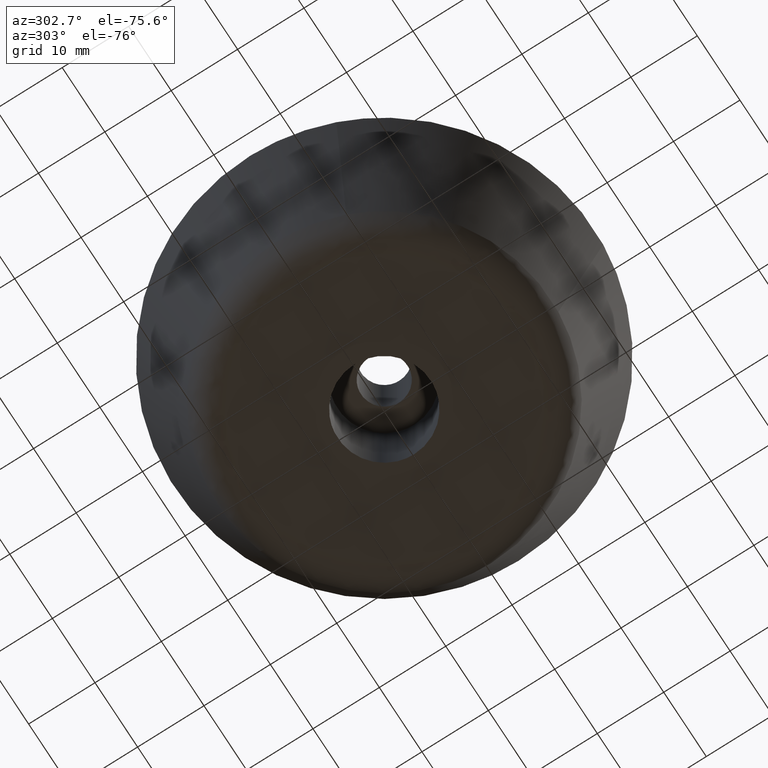
[diagram: clean part render]
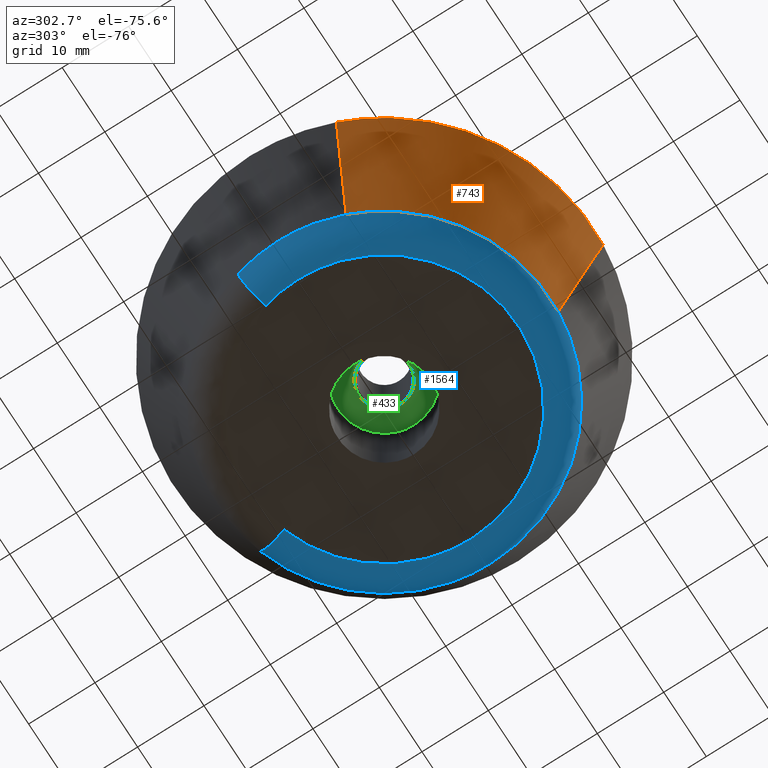
[diagram: same view with three faces highlighted in distinct colors, each labeled with its STEP entity id]
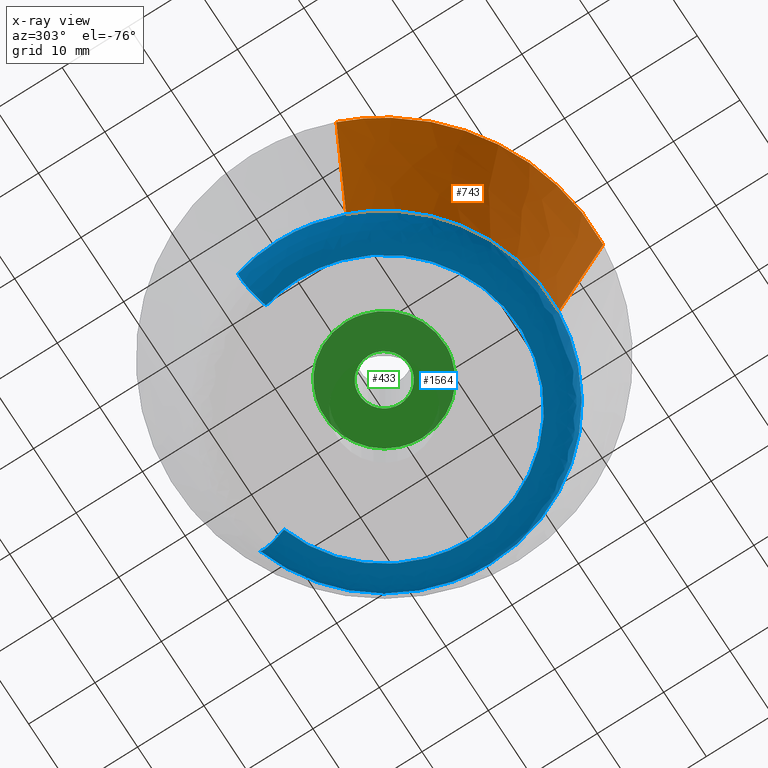
[diagram: x-ray of the same camera — body ghosted, the three highlighted faces saturated]
A machine part, auxiliary view with three faces highlighted in distinct colors.
The next image is the same camera in x-ray (body ghosted, the three faces saturated) — at least one of them is partly hidden behind the body in this view.
Their STEP definitions:

[orange] entity #743 — the highlighted face is a freeform B-spline surface patch.
#679=CARTESIAN_POINT('',(-23.136069071193617,-9.153823592287615,3.054551920910266));
#680=CARTESIAN_POINT('',(-16.373259671946041,-26.246661770656686,3.054551920910266));
#681=CARTESIAN_POINT('',(1.952150248378111,-24.804420731666379,3.054551920910266));
#682=CARTESIAN_POINT('',(-29.444595726723545,-11.649802488022551,26.573636201977241));
#683=CARTESIAN_POINT('',(-20.837766791134719,-33.403355714185082,26.573636201977234));
#684=CARTESIAN_POINT('',(2.484444297103360,-31.567857894616701,26.573636201977241));
#692=(BOUNDED_SURFACE()B_SPLINE_SURFACE(2,1,((#679,#682),(#680,#683),(#681,#684)),.UNSPECIFIED.,.F.,.F.,.U.)B_SPLINE_SURFACE_WITH_KNOTS((3,3),(2,2),(0.0,41.685970175264274),(0.0,24.478046176756379),.UNSPECIFIED.)GEOMETRIC_REPRESENTATION_ITEM()RATIONAL_B_SPLINE_SURFACE(((0.906274169979695,0.906274169979695),(0.765685424949238,0.765685424949238),(1.0,1.0)))REPRESENTATION_ITEM('')SURFACE());
#693=CARTESIAN_POINT('',(1.964796795045842,-24.965356706877639,3.614183215701587));
#694=VERTEX_POINT('',#693);
#695=CARTESIAN_POINT('',(-23.286182837838449,-9.213213582374392,3.614193855778152));
#696=VERTEX_POINT('',#695);
#697=CARTESIAN_POINT('',(1.964796795045843,-24.965356706877639,3.614183215701587));
#698=CARTESIAN_POINT('',(0.983914783355928,-25.042553132541119,3.614183498625328));
#699=CARTESIAN_POINT('',(-0.000000248841546,-25.042553234370239,3.614183797076507));
#700=CARTESIAN_POINT('',(-17.023279753227662,-25.042554996174200,3.614188960751894));
#701=CARTESIAN_POINT('',(-23.286182837838446,-9.213213582374392,3.614193855778151));
#709=(BOUNDED_CURVE()B_SPLINE_CURVE(2,(#697,#698,#699,#700,#701),.UNSPECIFIED.,.F.,.U.)B_SPLINE_CURVE_WITH_KNOTS((3,2,3),(0.736331432949555,0.750000000000000,0.937532566109869),.UNSPECIFIED.)CURVE()GEOMETRIC_REPRESENTATION_ITEM()RATIONAL_B_SPLINE_CURVE((0.969723632307023,0.983986277600111,1.0,0.780291932318936,0.890203206456037))REPRESENTATION_ITEM(''));
#710=EDGE_CURVE('',#694,#696,#709,.T.);
#711=ORIENTED_EDGE('',*,*,#710,.F.);
#712=CARTESIAN_POINT('',(2.471443264647377,-31.402893684112271,25.999986988792958));
#713=VERTEX_POINT('',#712);
#714=CARTESIAN_POINT('',(1.964796795045842,-24.965356706877639,3.614183215701587));
#715=CARTESIAN_POINT('',(2.471443264647377,-31.402893684112271,25.999986988792958));
#716=QUASI_UNIFORM_CURVE('',1,(#714,#715),.UNSPECIFIED.,.F.,.U.);
#717=EDGE_CURVE('',#694,#713,#716,.T.);
#718=ORIENTED_EDGE('',*,*,#717,.T.);
#719=CARTESIAN_POINT('',(-29.290729468696490,-11.588913489933820,25.999986171061011));
#720=VERTEX_POINT('',#719);
#721=CARTESIAN_POINT('',(2.471443264647377,-31.402893684112271,25.999986988792958));
#722=CARTESIAN_POINT('',(1.237629162913667,-31.499996318800296,25.999986967049104));
#723=CARTESIAN_POINT('',(-0.000000075704237,-31.499996382587280,25.999986944111900));
#724=CARTESIAN_POINT('',(-21.412885786395133,-31.499997486199881,25.999986547263063));
#725=CARTESIAN_POINT('',(-29.290729468696490,-11.588913489933823,25.999986171061011));
#733=(BOUNDED_CURVE()B_SPLINE_CURVE(2,(#721,#722,#723,#724,#725),.UNSPECIFIED.,.F.,.U.)B_SPLINE_CURVE_WITH_KNOTS((3,2,3),(0.736331398654010,0.750000000000000,0.937532603646275),.UNSPECIFIED.)CURVE()GEOMETRIC_REPRESENTATION_ITEM()RATIONAL_B_SPLINE_CURVE((0.969723560734762,0.983986237420380,1.0,0.780291888342301,0.890203250455600))REPRESENTATION_ITEM(''));
#734=EDGE_CURVE('',#713,#720,#733,.T.);
#735=ORIENTED_EDGE('',*,*,#734,.T.);
#736=CARTESIAN_POINT('',(-23.286182837838449,-9.213213582374392,3.614193855778152));
#737=CARTESIAN_POINT('',(-29.290729468696490,-11.588913489933820,25.999986171061011));
#738=QUASI_UNIFORM_CURVE('',1,(#736,#737),.UNSPECIFIED.,.F.,.U.);
#739=EDGE_CURVE('',#696,#720,#738,.T.);
#740=ORIENTED_EDGE('',*,*,#739,.F.);
#741=EDGE_LOOP('',(#711,#718,#735,#740));
#742=FACE_OUTER_BOUND('',#741,.T.);
#743=ADVANCED_FACE('',(#742),#692,.T.);

[blue] entity #1564 — the highlighted face is a freeform B-spline surface patch.
#693=CARTESIAN_POINT('',(1.964796795045842,-24.965356706877639,3.614183215701587));
#694=VERTEX_POINT('',#693);
#695=CARTESIAN_POINT('',(-23.286182837838449,-9.213213582374392,3.614193855778152));
#696=VERTEX_POINT('',#695);
#697=CARTESIAN_POINT('',(1.964796795045843,-24.965356706877639,3.614183215701587));
#698=CARTESIAN_POINT('',(0.983914783355928,-25.042553132541119,3.614183498625328));
#699=CARTESIAN_POINT('',(-0.000000248841546,-25.042553234370239,3.614183797076507));
#700=CARTESIAN_POINT('',(-17.023279753227662,-25.042554996174200,3.614188960751894));
#701=CARTESIAN_POINT('',(-23.286182837838446,-9.213213582374392,3.614193855778151));
#709=(BOUNDED_CURVE()B_SPLINE_CURVE(2,(#697,#698,#699,#700,#701),.UNSPECIFIED.,.F.,.U.)B_SPLINE_CURVE_WITH_KNOTS((3,2,3),(0.736331432949555,0.750000000000000,0.937532566109869),.UNSPECIFIED.)CURVE()GEOMETRIC_REPRESENTATION_ITEM()RATIONAL_B_SPLINE_CURVE((0.969723632307023,0.983986277600111,1.0,0.780291932318936,0.890203206456037))REPRESENTATION_ITEM(''));
#710=EDGE_CURVE('',#694,#696,#709,.T.);
#770=CARTESIAN_POINT('',(-25.042556999999949,0.0,3.614197000000105));
#771=VERTEX_POINT('',#770);
#772=CARTESIAN_POINT('',(-23.286182837838446,-9.213213582374392,3.614193855778151));
#773=CARTESIAN_POINT('',(-25.042556578312364,-4.774021075879326,3.614195427889129));
#774=CARTESIAN_POINT('',(-25.042556999999949,0.0,3.614197000000105));
#782=(BOUNDED_CURVE()B_SPLINE_CURVE(2,(#772,#773,#774),.UNSPECIFIED.,.F.,.U.)B_SPLINE_CURVE_WITH_KNOTS((3,3),(0.937532566109869,1.0),.UNSPECIFIED.)CURVE()GEOMETRIC_REPRESENTATION_ITEM()RATIONAL_B_SPLINE_CURVE((0.890203206456037,0.926814848867612,1.0))REPRESENTATION_ITEM(''));
#783=EDGE_CURVE('',#696,#771,#782,.T.);
#832=CARTESIAN_POINT('',(25.042556999999949,0.0,3.614197000000105));
#833=VERTEX_POINT('',#832);
#834=CARTESIAN_POINT('',(25.042556999999949,0.0,3.614197000000105));
#835=CARTESIAN_POINT('',(25.042556844015103,-23.149117518880452,3.614190107850846));
#836=CARTESIAN_POINT('',(1.964796795045843,-24.965356706877639,3.614183215701587));
#844=(BOUNDED_CURVE()B_SPLINE_CURVE(2,(#834,#835,#836),.UNSPECIFIED.,.F.,.U.)B_SPLINE_CURVE_WITH_KNOTS((3,3),(0.500000000000000,0.736331432949555),.UNSPECIFIED.)CURVE()GEOMETRIC_REPRESENTATION_ITEM()RATIONAL_B_SPLINE_CURVE((1.0,0.723120503586436,0.969723632307023))REPRESENTATION_ITEM(''));
#845=EDGE_CURVE('',#833,#694,#844,.T.);
#847=CARTESIAN_POINT('',(7.904105843229777,23.762465625612439,3.614196996014758));
#848=VERTEX_POINT('',#847);
#849=CARTESIAN_POINT('',(7.904105843229777,23.762465625612432,3.614196996014758));
#850=CARTESIAN_POINT('',(25.042556999999960,18.061704837062404,3.614197000000105));
#851=CARTESIAN_POINT('',(25.042556999999949,0.0,3.614197000000105));
#859=(BOUNDED_CURVE()B_SPLINE_CURVE(2,(#849,#850,#851),.UNSPECIFIED.,.F.,.U.)B_SPLINE_CURVE_WITH_KNOTS((3,3),(0.303659303332147,0.500000000000000),.UNSPECIFIED.)CURVE()GEOMETRIC_REPRESENTATION_ITEM()RATIONAL_B_SPLINE_CURVE((0.901255104929078,0.769972565475507,1.0))REPRESENTATION_ITEM(''));
#860=EDGE_CURVE('',#848,#833,#859,.T.);
#862=CARTESIAN_POINT('',(-24.175624730555271,6.532138292832401,3.614196996010016));
#863=VERTEX_POINT('',#862);
#879=CARTESIAN_POINT('',(-25.042556999999949,0.0,3.614197000000105));
#880=CARTESIAN_POINT('',(-25.042556999999952,3.323597900870759,3.614197000000105));
#881=CARTESIAN_POINT('',(-24.175624730555274,6.532138292832402,3.614196996010016));
#889=(BOUNDED_CURVE()B_SPLINE_CURVE(2,(#879,#880,#881),.UNSPECIFIED.,.F.,.U.)B_SPLINE_CURVE_WITH_KNOTS((3,3),(0.0,0.044477792329169),.UNSPECIFIED.)CURVE()GEOMETRIC_REPRESENTATION_ITEM()RATIONAL_B_SPLINE_CURVE((1.0,0.947891024955973,0.914323587275899))REPRESENTATION_ITEM(''));
#890=EDGE_CURVE('',#771,#863,#889,.T.);
#1453=CARTESIAN_POINT('',(7.927428581808576,23.832581813937601,3.902272826200201));
#1454=CARTESIAN_POINT('',(30.433809199517228,16.346287363138931,3.902272826200201));
#1455=CARTESIAN_POINT('',(24.246960032338336,-6.551412750536426,3.902272826200201));
#1456=CARTESIAN_POINT('',(17.695547281801925,-30.798372782874768,3.902272826200201));
#1457=CARTESIAN_POINT('',(-6.551412750536423,-24.246960032338336,3.902272826200201));
#1458=CARTESIAN_POINT('',(-30.798372782874768,-17.695547281801908,3.902272826200201));
#1459=CARTESIAN_POINT('',(-24.246960032338347,6.551412750536411,3.902272826200201));
#1460=CARTESIAN_POINT('',(7.632969330573906,22.947335845020891,-0.243442925572849));
#1461=CARTESIAN_POINT('',(29.303364872377767,15.739115001036295,-0.243442925572848));
#1462=CARTESIAN_POINT('',(23.346322250217771,-6.308064724988889,-0.243442925572849));
#1463=CARTESIAN_POINT('',(17.038257525228889,-29.654386975206659,-0.243442925572849));
#1464=CARTESIAN_POINT('',(-6.308064724988887,-23.346322250217771,-0.243442925572849));
#1465=CARTESIAN_POINT('',(-29.654386975206659,-17.038257525228875,-0.243442925572849));
#1466=CARTESIAN_POINT('',(-23.346322250217785,6.308064724988875,-0.243442925572849));
#1467=CARTESIAN_POINT('',(6.294112324686607,18.922270364999516,0.008817990834848));
#1468=CARTESIAN_POINT('',(24.163423434606401,12.978403740059836,0.008817990834848));
#1469=CARTESIAN_POINT('',(19.251272767809276,-5.201601920688993,0.008817990834848));
#1470=CARTESIAN_POINT('',(14.049670847120286,-24.452874688498266,0.008817990834848));
#1471=CARTESIAN_POINT('',(-5.201601920688992,-19.251272767809276,0.008817990834848));
#1472=CARTESIAN_POINT('',(-24.452874688498266,-14.049670847120272,0.008817990834848));
#1473=CARTESIAN_POINT('',(-19.251272767809290,5.201601920688981,0.008817990834848));
#1481=(BOUNDED_SURFACE()B_SPLINE_SURFACE(2,2,((#1453,#1460,#1467),(#1454,#1461,#1468),(#1455,#1462,#1469),(#1456,#1463,#1470),(#1457,#1464,#1471),(#1458,#1465,#1472),(#1459,#1466,#1473)),.UNSPECIFIED.,.F.,.F.,.U.)B_SPLINE_SURFACE_WITH_KNOTS((3,2,2,3),(3,3),(0.0,39.949725647142003,81.564023196248257,123.178320745354500),(0.0,7.350736894839324),.UNSPECIFIED.)GEOMETRIC_REPRESENTATION_ITEM()RATIONAL_B_SPLINE_SURFACE(((0.897937218018157,0.684754063585152,0.899353248970025),(0.660310643986461,0.503543441150821,0.661351942076095),(0.918600398368739,0.700511509014225,0.920049014786889),(0.649548570887200,0.495336438323179,0.650572897379811),(0.918600398368739,0.700511509014225,0.920049014786889),(0.649548570887200,0.495336438323179,0.650572897379811),(0.918600398368739,0.700511509014225,0.920049014786889)))REPRESENTATION_ITEM('')SURFACE());
#1482=CARTESIAN_POINT('',(6.387796736638805,19.203917987120651,8.823858E-016));
#1483=VERTEX_POINT('',#1482);
#1484=CARTESIAN_POINT('',(20.238439000000000,0.0,0.0));
#1485=VERTEX_POINT('',#1484);
#1486=CARTESIAN_POINT('',(6.387796736638804,19.203917987120644,8.823858E-016));
#1487=CARTESIAN_POINT('',(20.238439000000000,14.596780655287130,0.0));
#1488=CARTESIAN_POINT('',(20.238439000000000,0.0,0.0));
#1496=(BOUNDED_CURVE()B_SPLINE_CURVE(2,(#1486,#1487,#1488),.UNSPECIFIED.,.F.,.U.)B_SPLINE_CURVE_WITH_KNOTS((3,3),(0.303659303333953,0.500000000000000),.UNSPECIFIED.)CURVE()GEOMETRIC_REPRESENTATION_ITEM()RATIONAL_B_SPLINE_CURVE((0.901255104926662,0.769972565477623,1.0))REPRESENTATION_ITEM(''));
#1497=EDGE_CURVE('',#1483,#1485,#1496,.T.);
#1498=ORIENTED_EDGE('',*,*,#1497,.F.);
#1499=CARTESIAN_POINT('',(7.904105843229777,23.762465625612432,3.614196996014758));
#1500=CARTESIAN_POINT('',(7.575046882880354,22.773201009333086,1.782360E-009));
#1501=CARTESIAN_POINT('',(6.387796736638805,19.203917987120644,8.823858E-016));
#1509=(BOUNDED_CURVE()B_SPLINE_CURVE(2,(#1499,#1500,#1501),.UNSPECIFIED.,.F.,.U.)B_SPLINE_CURVE_WITH_KNOTS((3,3),(-1.687246733952539,-0.307730782720465),.UNSPECIFIED.)CURVE()GEOMETRIC_REPRESENTATION_ITEM()RATIONAL_B_SPLINE_CURVE((0.879456775961552,0.703298829066032,0.880744159818747))REPRESENTATION_ITEM(''));
#1510=EDGE_CURVE('',#848,#1483,#1509,.T.);
#1511=ORIENTED_EDGE('',*,*,#1510,.F.);
#1512=ORIENTED_EDGE('',*,*,#860,.T.);
#1513=ORIENTED_EDGE('',*,*,#845,.T.);
#1514=ORIENTED_EDGE('',*,*,#710,.T.);
#1515=ORIENTED_EDGE('',*,*,#783,.T.);
#1516=ORIENTED_EDGE('',*,*,#890,.T.);
#1517=CARTESIAN_POINT('',(-19.537817410401811,5.279024914173268,9.241470E-016));
#1518=VERTEX_POINT('',#1517);
#1519=CARTESIAN_POINT('',(-24.175624730555267,6.532138292832401,3.614196996010017));
#1520=CARTESIAN_POINT('',(-23.169159723983331,6.260196256869934,1.856448E-009));
#1521=CARTESIAN_POINT('',(-19.537817410401807,5.279024914173269,9.241470E-016));
#1529=(BOUNDED_CURVE()B_SPLINE_CURVE(2,(#1519,#1520,#1521),.UNSPECIFIED.,.F.,.U.)B_SPLINE_CURVE_WITH_KNOTS((3,3),(-1.687246733950275,-0.307730782743080),.UNSPECIFIED.)CURVE()GEOMETRIC_REPRESENTATION_ITEM()RATIONAL_B_SPLINE_CURVE((0.899694687484824,0.719483023524904,0.901011696397618))REPRESENTATION_ITEM(''));
#1530=EDGE_CURVE('',#863,#1518,#1529,.T.);
#1531=ORIENTED_EDGE('',*,*,#1530,.T.);
#1532=CARTESIAN_POINT('',(-20.238439000000000,0.0,0.0));
#1533=VERTEX_POINT('',#1532);
#1534=CARTESIAN_POINT('',(-20.238439000000000,0.0,0.0));
#1535=CARTESIAN_POINT('',(-20.238439000000003,2.686005002636643,0.0));
#1536=CARTESIAN_POINT('',(-19.537817410401804,5.279024914173269,9.241470E-016));
#1544=(BOUNDED_CURVE()B_SPLINE_CURVE(2,(#1534,#1535,#1536),.UNSPECIFIED.,.F.,.U.)B_SPLINE_CURVE_WITH_KNOTS((3,3),(0.0,0.044477792331371),.UNSPECIFIED.)CURVE()GEOMETRIC_REPRESENTATION_ITEM()RATIONAL_B_SPLINE_CURVE((1.0,0.947891024953394,0.914323587272577))REPRESENTATION_ITEM(''));
#1545=EDGE_CURVE('',#1533,#1518,#1544,.T.);
#1546=ORIENTED_EDGE('',*,*,#1545,.F.);
#1547=CARTESIAN_POINT('',(20.238439000000000,0.0,0.0));
#1548=CARTESIAN_POINT('',(20.238439000000003,-20.238439000000003,0.0));
#1549=CARTESIAN_POINT('',(0.0,-20.238439000000000,0.0));
#1550=CARTESIAN_POINT('',(-20.238439000000003,-20.238439000000003,0.0));
#1551=CARTESIAN_POINT('',(-20.238439000000000,0.0,0.0));
#1559=(BOUNDED_CURVE()B_SPLINE_CURVE(2,(#1547,#1548,#1549,#1550,#1551),.UNSPECIFIED.,.F.,.U.)B_SPLINE_CURVE_WITH_KNOTS((3,2,3),(0.500000000000000,0.750000000000000,1.0),.UNSPECIFIED.)CURVE()GEOMETRIC_REPRESENTATION_ITEM()RATIONAL_B_SPLINE_CURVE((1.0,0.707106781186547,1.0,0.707106781186547,1.0))REPRESENTATION_ITEM(''));
#1560=EDGE_CURVE('',#1485,#1533,#1559,.T.);
#1561=ORIENTED_EDGE('',*,*,#1560,.F.);
#1562=EDGE_LOOP('',(#1498,#1511,#1512,#1513,#1514,#1515,#1516,#1531,#1546,#1561));
#1563=FACE_OUTER_BOUND('',#1562,.T.);
#1564=ADVANCED_FACE('',(#1563),#1481,.T.);

[green] entity #433 — the highlighted face is a freeform B-spline surface patch.
#66=CARTESIAN_POINT('',(-0.442628380085472,3.723785723849173,15.0));
#67=VERTEX_POINT('',#66);
#68=CARTESIAN_POINT('',(3.750000000000000,0.0,15.0));
#69=VERTEX_POINT('',#68);
#70=CARTESIAN_POINT('',(-0.442628380085472,3.723785723849173,14.999999999999996));
#71=CARTESIAN_POINT('',(-0.222090448818586,3.750000000000000,14.999999999999998));
#72=CARTESIAN_POINT('',(0.0,3.750000000000000,15.0));
#73=CARTESIAN_POINT('',(3.750000000000000,3.750000000000000,14.999999999999996));
#74=CARTESIAN_POINT('',(3.750000000000000,0.0,15.0));
#82=(BOUNDED_CURVE()B_SPLINE_CURVE(2,(#70,#71,#72,#73,#74),.UNSPECIFIED.,.F.,.U.)B_SPLINE_CURVE_WITH_KNOTS((3,2,3),(0.229562473504513,0.250000000000000,0.500000000000000),.UNSPECIFIED.)CURVE()GEOMETRIC_REPRESENTATION_ITEM()RATIONAL_B_SPLINE_CURVE((0.956026754166069,0.976055948320607,1.0,0.707106781186547,1.0))REPRESENTATION_ITEM(''));
#83=EDGE_CURVE('',#67,#69,#82,.T.);
#85=CARTESIAN_POINT('',(0.228932023283434,-3.743005494080305,15.0));
#86=VERTEX_POINT('',#85);
#87=CARTESIAN_POINT('',(3.750000000000000,0.0,15.0));
#88=CARTESIAN_POINT('',(3.750000000000000,-3.527647750844029,15.0));
#89=CARTESIAN_POINT('',(0.228932023283434,-3.743005494080305,15.000000000000004));
#97=(BOUNDED_CURVE()B_SPLINE_CURVE(2,(#87,#88,#89),.UNSPECIFIED.,.F.,.U.)B_SPLINE_CURVE_WITH_KNOTS((3,3),(0.500000000000000,0.739332962239414),.UNSPECIFIED.)CURVE()GEOMETRIC_REPRESENTATION_ITEM()RATIONAL_B_SPLINE_CURVE((1.0,0.719603993286159,0.976072041667726))REPRESENTATION_ITEM(''));
#98=EDGE_CURVE('',#69,#86,#97,.T.);
#165=CARTESIAN_POINT('',(-3.750000000000000,0.0,15.0));
#166=VERTEX_POINT('',#165);
#167=CARTESIAN_POINT('',(-3.750000000000000,0.0,15.0));
#168=CARTESIAN_POINT('',(-3.750000000000000,3.330654472096721,15.0));
#169=CARTESIAN_POINT('',(-0.442628380085471,3.723785723849173,14.999999999999998));
#177=(BOUNDED_CURVE()B_SPLINE_CURVE(2,(#167,#168,#169),.UNSPECIFIED.,.F.,.U.)B_SPLINE_CURVE_WITH_KNOTS((3,3),(0.0,0.229562473504513),.UNSPECIFIED.)CURVE()GEOMETRIC_REPRESENTATION_ITEM()RATIONAL_B_SPLINE_CURVE((1.0,0.731050832865941,0.956026754166069))REPRESENTATION_ITEM(''));
#178=EDGE_CURVE('',#166,#67,#177,.T.);
#212=CARTESIAN_POINT('',(0.228932023283434,-3.743005494080305,15.000000000000005));
#213=CARTESIAN_POINT('',(0.114572862397506,-3.750000000000000,14.999999999999996));
#214=CARTESIAN_POINT('',(0.0,-3.750000000000000,15.0));
#215=CARTESIAN_POINT('',(-3.750000000000000,-3.750000000000000,14.999999999999996));
#216=CARTESIAN_POINT('',(-3.750000000000000,0.0,15.0));
#224=(BOUNDED_CURVE()B_SPLINE_CURVE(2,(#212,#213,#214,#215,#216),.UNSPECIFIED.,.F.,.U.)B_SPLINE_CURVE_WITH_KNOTS((3,2,3),(0.739332962239413,0.750000000000000,1.0),.UNSPECIFIED.)CURVE()GEOMETRIC_REPRESENTATION_ITEM()RATIONAL_B_SPLINE_CURVE((0.976072041667724,0.987502787900388,1.0,0.707106781186547,1.0))REPRESENTATION_ITEM(''));
#225=EDGE_CURVE('',#86,#166,#224,.T.);
#252=CARTESIAN_POINT('',(-1.062308111962487,8.937085737266855,15.0));
#253=VERTEX_POINT('',#252);
#254=CARTESIAN_POINT('',(9.0,0.0,15.0));
#255=VERTEX_POINT('',#254);
#256=CARTESIAN_POINT('',(-1.062308111962487,8.937085737266855,14.999999999999996));
#257=CARTESIAN_POINT('',(-0.533017076919398,9.0,14.999999999999995));
#258=CARTESIAN_POINT('',(0.0,9.0,15.0));
#259=CARTESIAN_POINT('',(9.0,9.0,14.999999999999996));
#260=CARTESIAN_POINT('',(9.0,0.0,15.0));
#268=(BOUNDED_CURVE()B_SPLINE_CURVE(2,(#256,#257,#258,#259,#260),.UNSPECIFIED.,.F.,.U.)B_SPLINE_CURVE_WITH_KNOTS((3,2,3),(0.229562473513690,0.250000000000000,0.500000000000000),.UNSPECIFIED.)CURVE()GEOMETRIC_REPRESENTATION_ITEM()RATIONAL_B_SPLINE_CURVE((0.956026754184056,0.976055948331358,1.0,0.707106781186547,1.0))REPRESENTATION_ITEM(''));
#269=EDGE_CURVE('',#253,#255,#268,.T.);
#310=CARTESIAN_POINT('',(0.549433040326259,-8.983213419160386,14.999999999999890));
#311=VERTEX_POINT('',#310);
#317=CARTESIAN_POINT('',(9.0,0.0,15.0));
#318=CARTESIAN_POINT('',(9.000000000000002,-8.466358204830989,15.000000000000009));
#319=CARTESIAN_POINT('',(0.549433040326259,-8.983213419160386,14.999999999999895));
#327=(BOUNDED_CURVE()B_SPLINE_CURVE(2,(#317,#318,#319),.UNSPECIFIED.,.F.,.U.)B_SPLINE_CURVE_WITH_KNOTS((3,3),(0.500000000000000,0.739333035528679),.UNSPECIFIED.)CURVE()GEOMETRIC_REPRESENTATION_ITEM()RATIONAL_B_SPLINE_CURVE((1.0,0.719603907422443,0.976072198740624))REPRESENTATION_ITEM(''));
#328=EDGE_CURVE('',#255,#311,#327,.T.);
#351=CARTESIAN_POINT('',(-9.0,0.0,15.0));
#352=VERTEX_POINT('',#351);
#353=CARTESIAN_POINT('',(-9.0,0.0,15.0));
#354=CARTESIAN_POINT('',(-9.0,7.993570733469241,15.000000000000004));
#355=CARTESIAN_POINT('',(-1.062308111962487,8.937085737266855,15.0));
#363=(BOUNDED_CURVE()B_SPLINE_CURVE(2,(#353,#354,#355),.UNSPECIFIED.,.F.,.U.)B_SPLINE_CURVE_WITH_KNOTS((3,3),(0.0,0.229562473513690),.UNSPECIFIED.)CURVE()GEOMETRIC_REPRESENTATION_ITEM()RATIONAL_B_SPLINE_CURVE((1.0,0.731050832855189,0.956026754184056))REPRESENTATION_ITEM(''));
#364=EDGE_CURVE('',#352,#253,#363,.T.);
#366=CARTESIAN_POINT('',(0.549433040326259,-8.983213419160386,14.999999999999895));
#367=CARTESIAN_POINT('',(0.274972956594507,-9.000000000000002,15.000000000000002));
#368=CARTESIAN_POINT('',(0.0,-9.0,15.0));
#369=CARTESIAN_POINT('',(-9.0,-9.0,14.999999999999996));
#370=CARTESIAN_POINT('',(-9.0,0.0,15.0));
#378=(BOUNDED_CURVE()B_SPLINE_CURVE(2,(#366,#367,#368,#369,#370),.UNSPECIFIED.,.F.,.U.)B_SPLINE_CURVE_WITH_KNOTS((3,2,3),(0.739333035528679,0.750000000000000,1.0),.UNSPECIFIED.)CURVE()GEOMETRIC_REPRESENTATION_ITEM()RATIONAL_B_SPLINE_CURVE((0.976072198740624,0.987502873764105,1.0,0.707106781186547,1.0))REPRESENTATION_ITEM(''));
#379=EDGE_CURVE('',#311,#352,#378,.T.);
#416=CARTESIAN_POINT('',(-9.899099965112507,-9.898881420025489,15.0));
#417=CARTESIAN_POINT('',(9.899100447910129,-9.898881420025489,15.0));
#418=CARTESIAN_POINT('',(-9.899099965112507,9.898936298021937,15.0));
#419=CARTESIAN_POINT('',(9.899100447910129,9.898936298021937,15.0));
#420=B_SPLINE_SURFACE_WITH_KNOTS('',1,1,((#416,#418),(#417,#419)),.UNSPECIFIED.,.F.,.F.,.U.,(2,2),(2,2),(0.0,19.798200413022631),(0.0,19.797817718047430),.UNSPECIFIED.);
#421=ORIENTED_EDGE('',*,*,#364,.T.);
#422=ORIENTED_EDGE('',*,*,#269,.T.);
#423=ORIENTED_EDGE('',*,*,#328,.T.);
#424=ORIENTED_EDGE('',*,*,#379,.T.);
#425=EDGE_LOOP('',(#421,#422,#423,#424));
#426=FACE_OUTER_BOUND('',#425,.T.);
#427=ORIENTED_EDGE('',*,*,#98,.F.);
#428=ORIENTED_EDGE('',*,*,#83,.F.);
#429=ORIENTED_EDGE('',*,*,#178,.F.);
#430=ORIENTED_EDGE('',*,*,#225,.F.);
#431=EDGE_LOOP('',(#427,#428,#429,#430));
#432=FACE_BOUND('',#431,.T.);
#433=ADVANCED_FACE('',(#426,#432),#420,.F.);